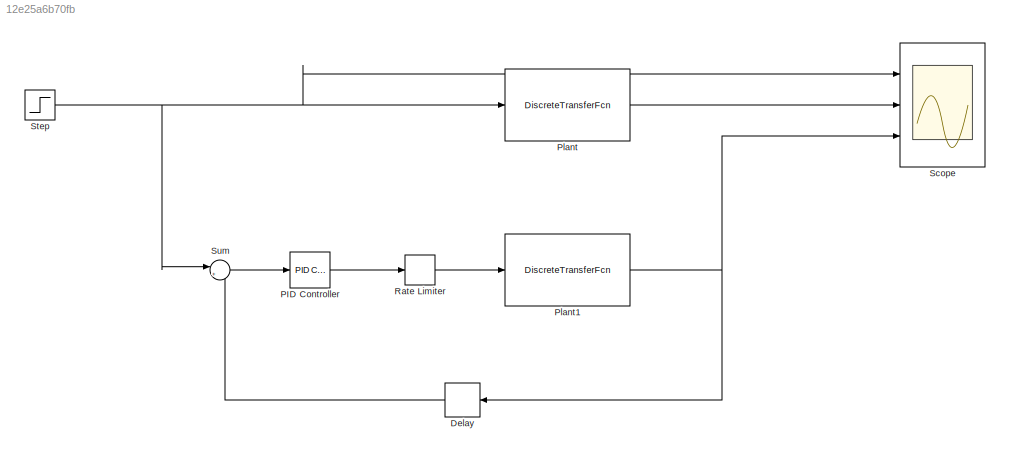
MODEL slx_12e25a6b70fb
KIND model
CONFIG AbsTol = auto
CONFIG EnableMultiTasking = off
CONFIG FixedStep = auto
CONFIG MaxStep = auto
CONFIG MinStep = auto
CONFIG RelTol = 1e-3
CONFIG SampleTimeConstraint = Unconstrained
CONFIG SolverName = VariableStepAuto
CONFIG StartTime = 0.0
CONFIG StopTime = 5
BLOCK [Delay] Delay
  DelayLength = 0
  InputPortMap = u0
  Ports = [1, 1]
BLOCK [Reference] PID Controller  REF=pid_lib/PID Controller
  Ports = [1, 1]
  SourceBlock = pid_lib/PID Controller
  SourceProductBaseCode = SL
  SourceType = PID 1dof
BLOCK [DiscreteTransferFcn] Plant
  Denominator = leftEstSmall.Denominator
  InputPortMap = u0
  Numerator = leftEstSmall.Numerator
  Ports = [1, 1]
  SampleTime = leftEstSmall.Ts
BLOCK [DiscreteTransferFcn] Plant1
  Denominator = leftEstSmall.Denominator
  InputPortMap = u0
  Numerator = leftEstSmall.Numerator
  Ports = [1, 1]
  SampleTime = leftEstSmall.Ts
BLOCK [RateLimiter] Rate Limiter
  FallingSlewLimit = -6.5
  RisingSlewLimit = 6.5
  SampleTimeMode = inherited
BLOCK [Scope] Scope
  Floating = off
  NumInputPorts = 3
  Ports = [3]
  ScopeSpecificationString = Simulink.scopes.TimeScopeBlockCfg('CurrentConfiguration', extmgr.ConfigurationSet(extmgr.Configuration('Core','General UI',true),extmgr.Configuration('Core','Source UI',true),extmgr.Configuration('Sources','WiredSimulink',true),extmgr.Configuration('Visuals','Time Domain',true,'SerializedDisplays',{struct('MinYLimReal','-0.14967','MaxYLimReal','1.26596','YLabelReal','','MinYLimMag','0.00000','MaxY...<+1398ch>
BLOCK [Step] Step
  SampleTime = 0
BLOCK [Sum] Sum
  Inputs = |+-
  Ports = [2, 1]
LINE Delay:1 -> Sum:2
LINE PID Controller:1 -> Rate Limiter:1
NET Plant1:1 -> Delay:1, Scope:3
LINE Plant:1 -> Scope:2
LINE Rate Limiter:1 -> Plant1:1
NET Step:1 -> Plant:1, Scope:1, Sum:1
LINE Sum:1 -> PID Controller:1
note: NET lines group one-source signal fan-out (src -> all destinations, sorted); 1:1 wires keep LINE
